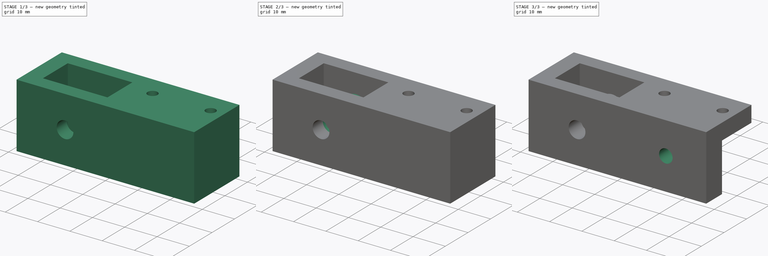
[diagram: build sequence overview — one tinted view per stage of 3, left to right]
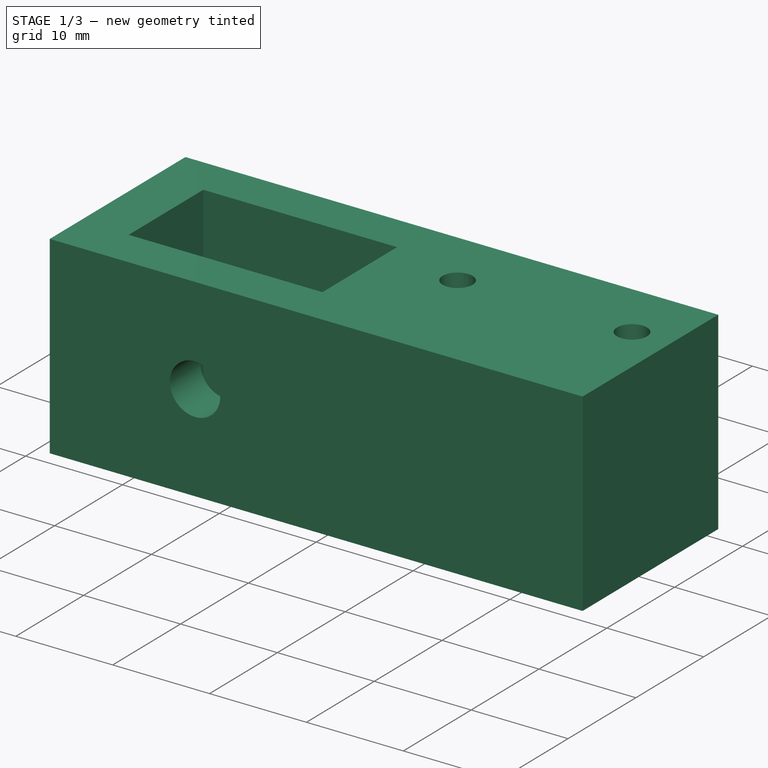
[diagram: stage 1 of 3 — iso view after this stage's code; geometry added in this stage tinted green]
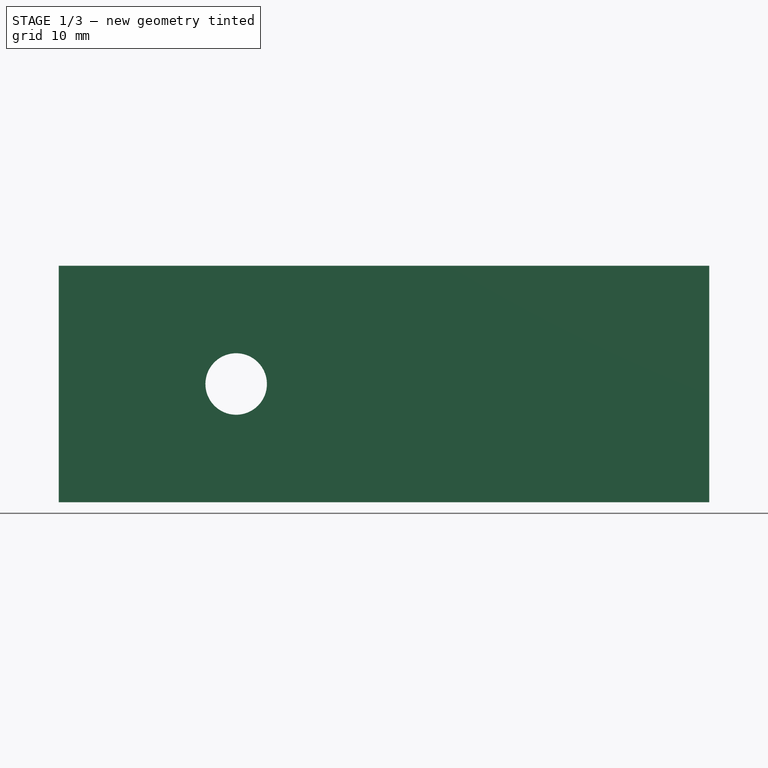
[diagram: stage 1 of 3 — front view after this stage's code; geometry added in this stage tinted green]
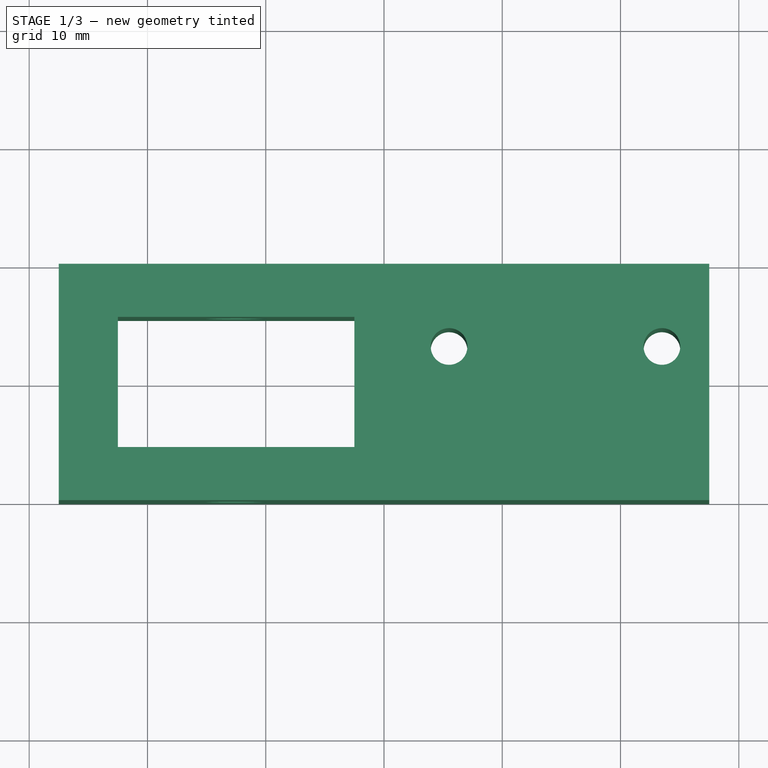
[diagram: stage 1 of 3 — top view after this stage's code; geometry added in this stage tinted green]
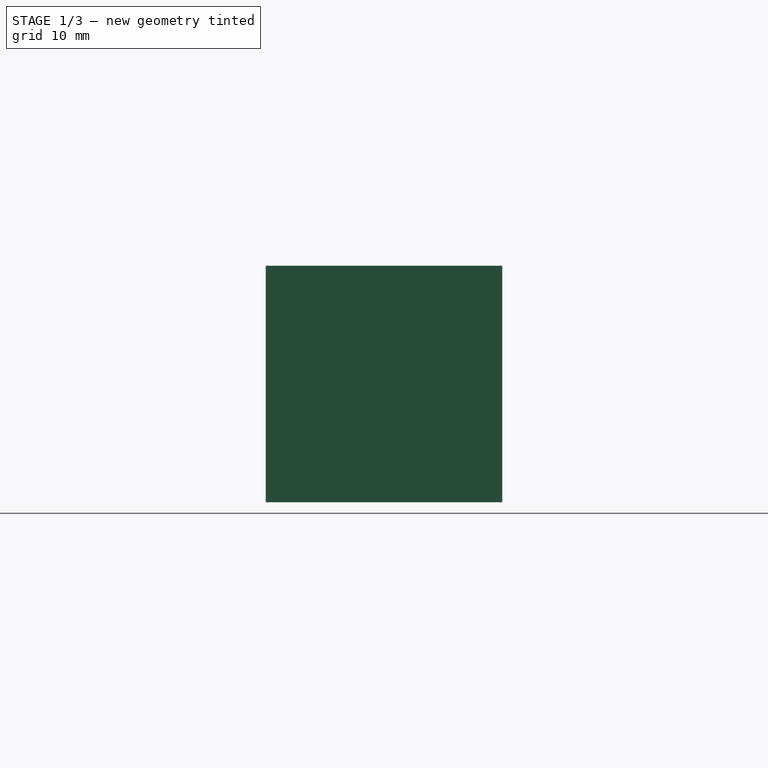
[diagram: stage 1 of 3 — right view after this stage's code; geometry added in this stage tinted green]
FCSTD DOCUMENT  (FreeCAD 0.16R6705 (Git))
Label: Z-belt-clamp-top-left
License: All rights reserved
LicenseURL: http://de.wikipedia.org/wiki/Alle_Rechte_vorbehalten
objects: Sketcher::SketchObject×8, PartDesign::Pocket×5, PartDesign::Pad×3
note: 24 computed .brp shape members not serialized (recipe doc carries the construction recipe); baked Part::Feature solids carry a one-line shape summary decoded from their .brp

FEATURE [Sketcher::SketchObject] Sketch
  sketch-geometry (10):
    g0: LineSegment StartX=-27.5 StartY=10 StartZ=0 EndX=-27.5 EndY=-10 EndZ=0
    g1: LineSegment StartX=-27.5 StartY=-10 StartZ=0 EndX=27.5 EndY=-10 EndZ=0
    g2: LineSegment StartX=27.5 StartY=-10 StartZ=0 EndX=27.5 EndY=10 EndZ=0
    g3: LineSegment StartX=27.5 StartY=10 StartZ=0 EndX=-27.5 EndY=10 EndZ=0
    g4: LineSegment StartX=-22.5 StartY=5.5 StartZ=0 EndX=-2.5 EndY=5.5 EndZ=0
    g5: LineSegment StartX=-2.5 StartY=5.5 StartZ=0 EndX=-2.5 EndY=-5.5 EndZ=0
    g6: LineSegment StartX=-2.5 StartY=-5.5 StartZ=0 EndX=-22.5 EndY=-5.5 EndZ=0
    g7: LineSegment StartX=-22.5 StartY=-5.5 StartZ=0 EndX=-22.5 EndY=5.5 EndZ=0
    g8: Circle CenterX=5.5 CenterY=3 CenterZ=0 NormalX=0 NormalY=0 NormalZ=1 Radius=1.55
    g9: Circle CenterX=23.5 CenterY=3 CenterZ=0 NormalX=0 NormalY=0 NormalZ=1 Radius=1.55
  constraints (30):
    c: Vertical(g0)
    c: Coincident(g0,g1)
    c: Horizontal(g1)
    c: Coincident(g1,g2)
    c: Vertical(g2)
    c: Coincident(g2,g3)
    c: Coincident(g3,g0)
    c: Horizontal(g3)
    c: Symmetric(g2,g0,g-2)
    c: Symmetric(g1,g2,g-1)
    c: DistanceX(g0,g1) = 55
    c: DistanceY(g2,g2) = 20
    c: Coincident(g4,g5)
    c: Coincident(g5,g6)
    c: Coincident(g6,g7)
    c: Coincident(g7,g4)
    c: Horizontal(g4)
    c: Horizontal(g6)
    c: Vertical(g5)
    c: Vertical(g7)
    c: DistanceX(g6,g6) = 20
    c: DistanceY(g7,g7) = 11
    c: Symmetric(g4,g6,g-1)
    c: DistanceX(g0,g6) = 5
    c: Equal(g8,g9)
    c: Radius(g8) = 1.55
    c: DistanceX(g8,g2) = 22
    c: DistanceX(g9,g2) = 4
    c: DistanceY(g9,g2) = 7
    c: DistanceY(g8,g2) = 7
FEATURE [PartDesign::Pad] Pad
  Length = 20
  Length2 = 100
  Midplane = true
  Sketch = -> Sketch
  Type = 0
FEATURE [Sketcher::SketchObject] Sketch001
  Placement = pos=(0,5.5,0) rot=(1,0,0;1.5708rad)
  Support = -> Pad [Face5]
  sketch-geometry (1):
    g0: Circle CenterX=-12.5 CenterY=0 CenterZ=0 NormalX=0 NormalY=0 NormalZ=1 Radius=2.6
  constraints (3):
    c: PointOnObject(g0,g-1)
    c: Radius(g0) = 2.6
    c: DistanceX(g0,g-1) = 12.5
FEATURE [PartDesign::Pocket] Pocket
  Length = 5
  Sketch = -> Sketch001
  Type = 0
FEATURE [Sketcher::SketchObject] Sketch002
  Placement = pos=(0,-5.5,0) rot=(0,0.707107,0.707107;3.14159rad)
  Support = -> Pocket [Face10]
  sketch-geometry (1):
    g0: Circle CenterX=12.5 CenterY=0 CenterZ=0 NormalX=0 NormalY=0 NormalZ=1 Radius=2.6
  constraints (3):
    c: PointOnObject(g0,g-1)
    c: Radius(g0) = 2.6
    c: DistanceX(g-1,g0) = 12.5
FEATURE [PartDesign::Pocket] Pocket001
  Length = 5
  Sketch = -> Sketch002
  Type = 0
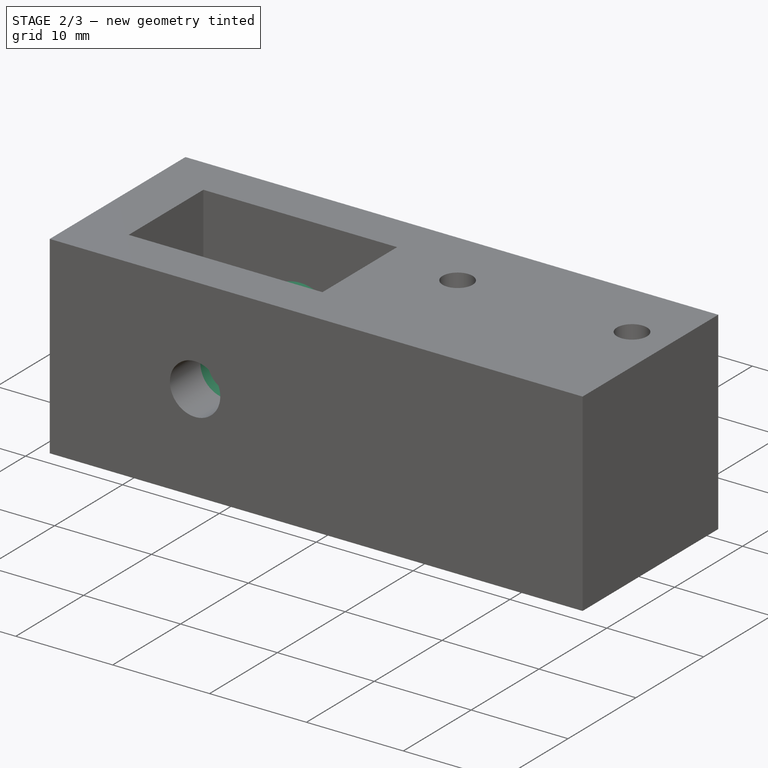
[diagram: stage 2 of 3 — iso view after this stage's code; geometry added in this stage tinted green]
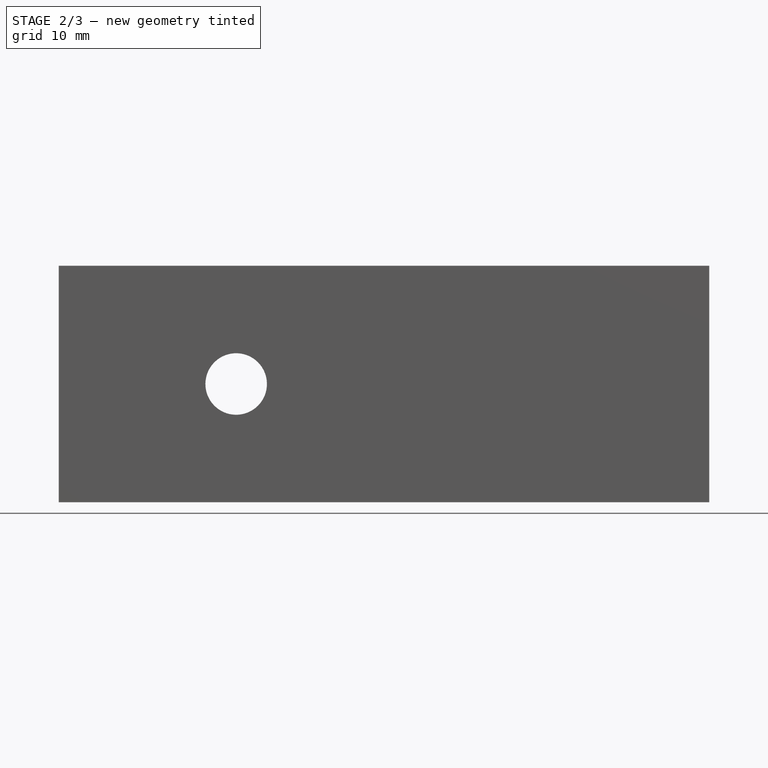
[diagram: stage 2 of 3 — front view after this stage's code; geometry added in this stage tinted green]
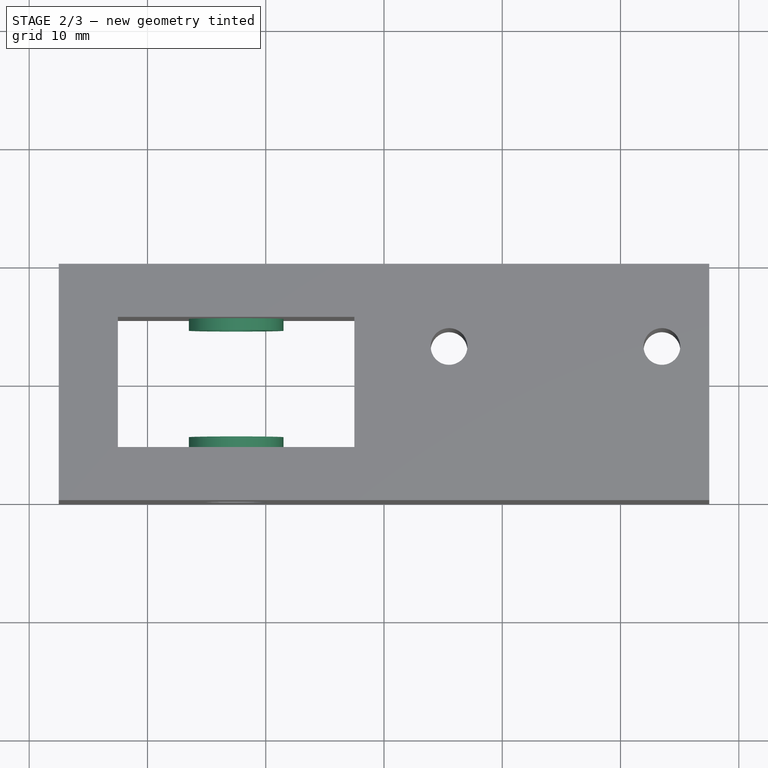
[diagram: stage 2 of 3 — top view after this stage's code; geometry added in this stage tinted green]
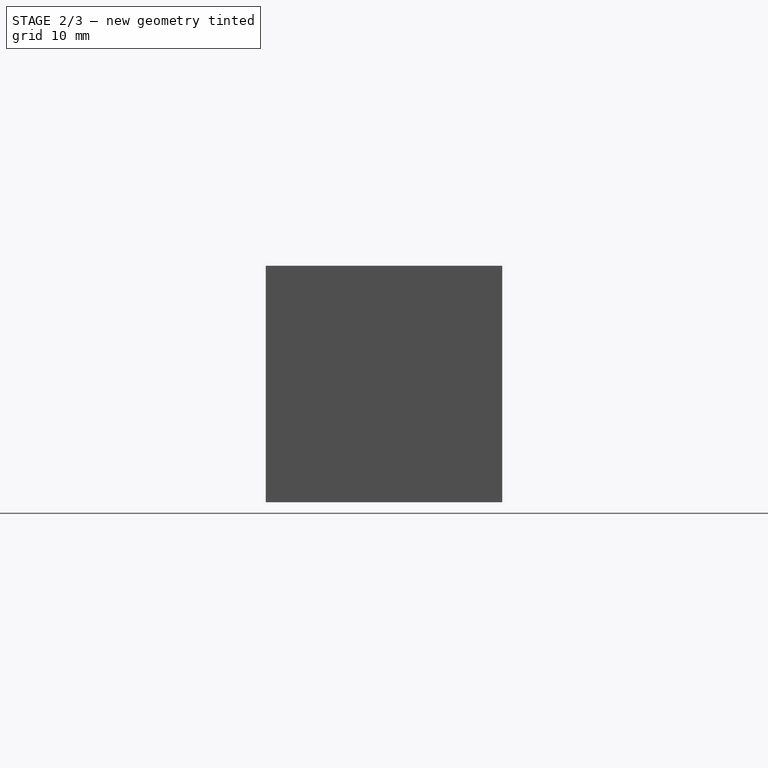
[diagram: stage 2 of 3 — right view after this stage's code; geometry added in this stage tinted green]
FEATURE [Sketcher::SketchObject] Sketch003
  ExternalGeometry = -> [Pocket001]
  Placement = pos=(0,-5.5,0) rot=(0,0.707107,0.707107;3.14159rad)
  Support = -> Pocket001 [Face11]
  sketch-geometry (2):
    g0: Circle CenterX=12.5 CenterY=0 CenterZ=0 NormalX=0 NormalY=0 NormalZ=1 Radius=4
    g1: Circle CenterX=12.5 CenterY=0 CenterZ=0 NormalX=0 NormalY=0 NormalZ=1 Radius=2.6
  constraints (4):
    c: Coincident(g0,g-3)
    c: Radius(g0) = 4
    c: Coincident(g1,g0)
    c: Equal(g1,g-3)
FEATURE [PartDesign::Pad] Pad001
  Length = 1
  Length2 = 100
  Sketch = -> Sketch003
  Type = 0
FEATURE [Sketcher::SketchObject] Sketch004
  ExternalGeometry = -> [Pad001]
  Placement = pos=(0,5.5,0) rot=(1,0,0;1.5708rad)
  Support = -> Pad001 [Face9]
  sketch-geometry (2):
    g0: Circle CenterX=-12.5 CenterY=0 CenterZ=0 NormalX=0 NormalY=0 NormalZ=1 Radius=2.6
    g1: Circle CenterX=-12.5 CenterY=0 CenterZ=0 NormalX=0 NormalY=0 NormalZ=1 Radius=4
  constraints (4):
    c: Coincident(g0,g-4)
    c: Coincident(g1,g0)
    c: Equal(g1,g-4)
    c: Equal(g0,g-3)
FEATURE [PartDesign::Pad] Pad002
  Length = 1
  Length2 = 100
  Sketch = -> Sketch004
  Type = 0
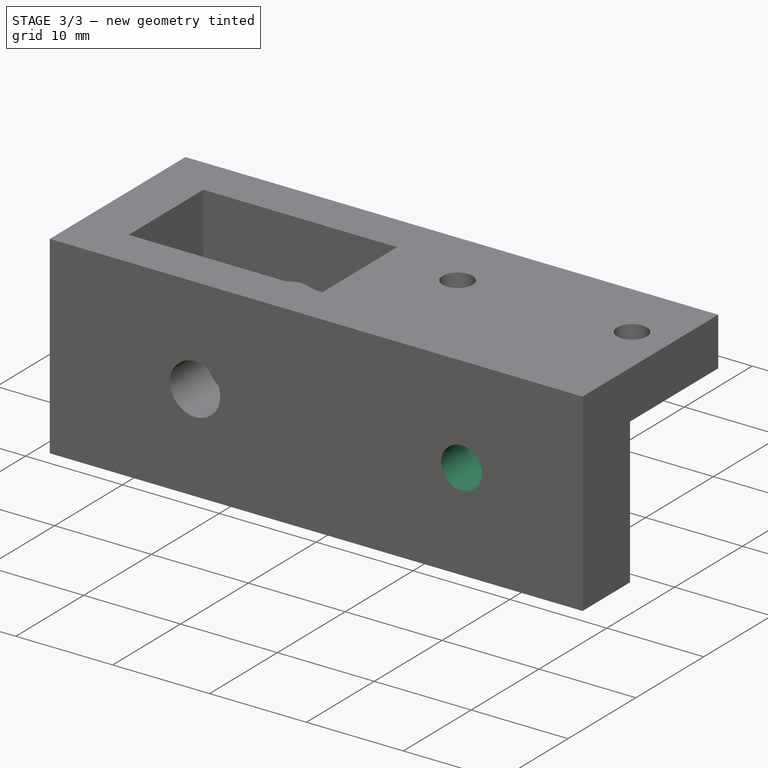
[diagram: stage 3 of 3 — iso view after this stage's code; geometry added in this stage tinted green]
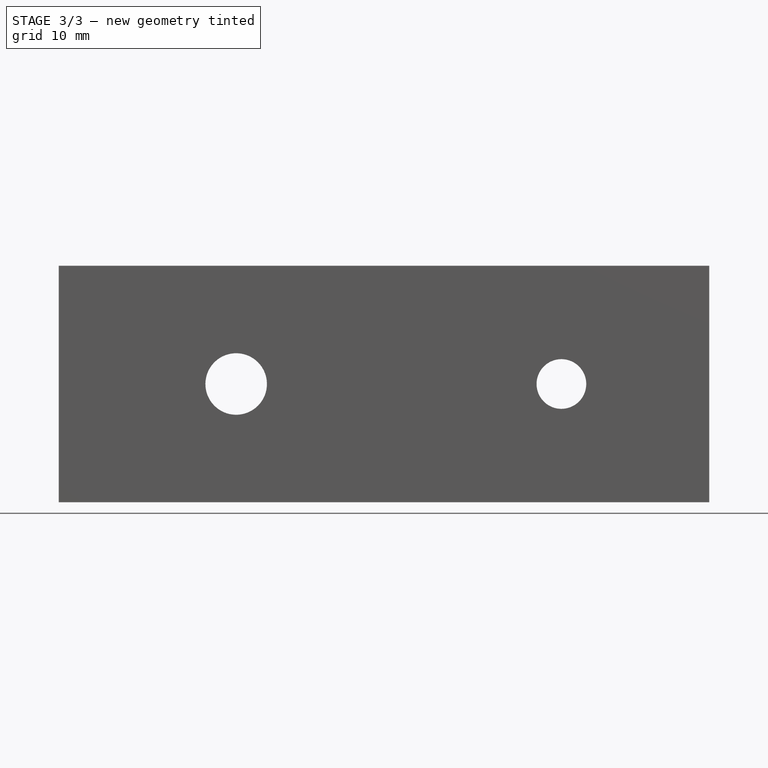
[diagram: stage 3 of 3 — front view after this stage's code; geometry added in this stage tinted green]
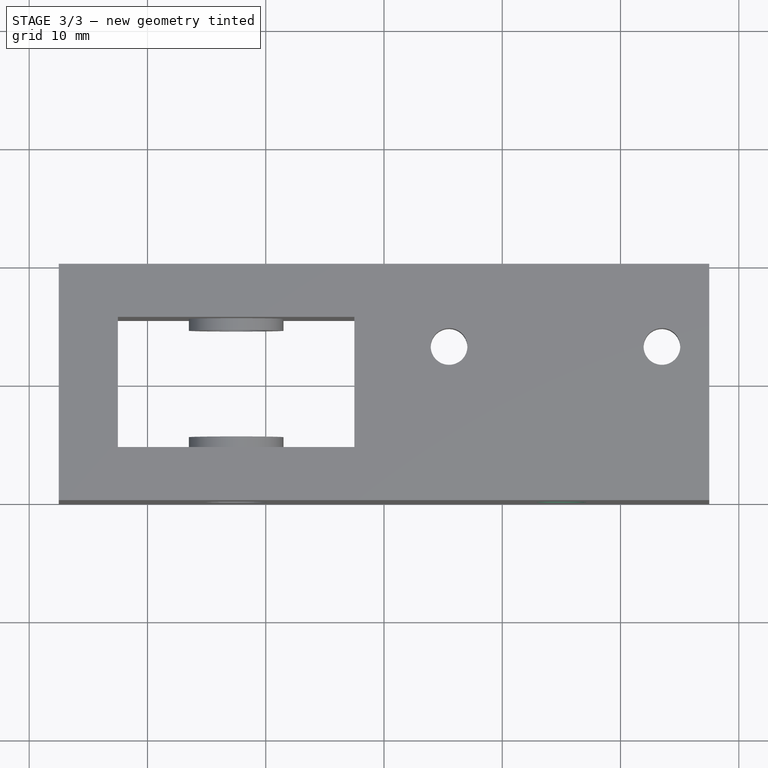
[diagram: stage 3 of 3 — top view after this stage's code; geometry added in this stage tinted green]
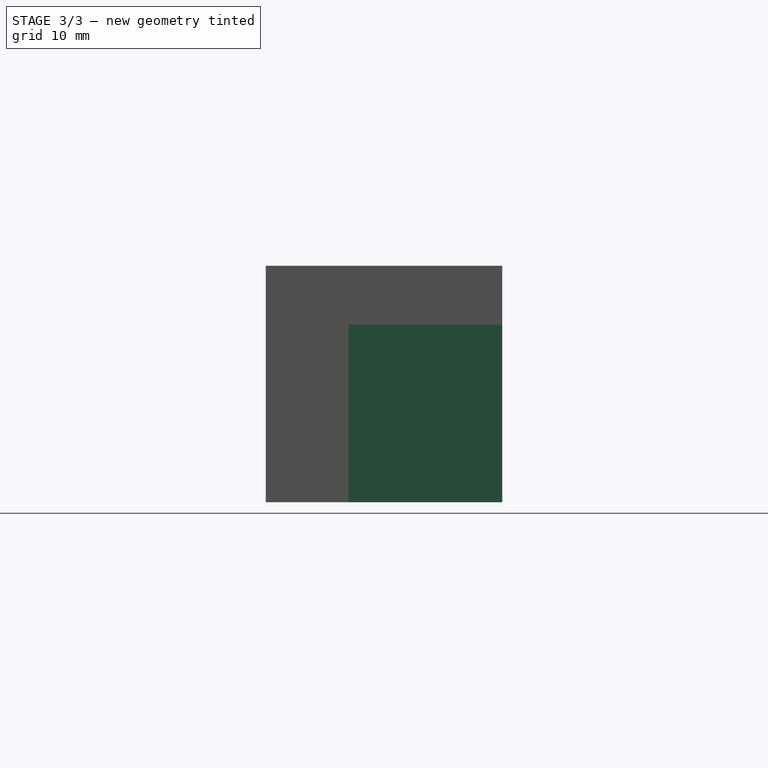
[diagram: stage 3 of 3 — right view after this stage's code; geometry added in this stage tinted green]
FEATURE [Sketcher::SketchObject] Sketch005
  ExternalGeometry = -> [Pad002]
  Placement = pos=(0,10,0) rot=(0,0.707107,0.707107;3.14159rad)
  Support = -> Pad002 [Face2]
  sketch-geometry (4):
    g0: LineSegment StartX=-27.5 StartY=-10 StartZ=0 EndX=-1.5 EndY=-10 EndZ=0
    g1: LineSegment StartX=-1.5 StartY=-10 StartZ=0 EndX=-1.5 EndY=5 EndZ=0
    g2: LineSegment StartX=-1.5 StartY=5 StartZ=0 EndX=-27.5 EndY=5 EndZ=0
    g3: LineSegment StartX=-27.5 StartY=5 StartZ=0 EndX=-27.5 EndY=-10 EndZ=0
  constraints (11):
    c: Coincident(g0,g1)
    c: Coincident(g1,g2)
    c: Coincident(g2,g3)
    c: Coincident(g3,g0)
    c: Horizontal(g0)
    c: Horizontal(g2)
    c: Vertical(g1)
    c: Vertical(g3)
    c: Coincident(g0,g-4)
    c: DistanceX(g2,g2) = 26
    c: DistanceY(g3,g3) = 15
FEATURE [PartDesign::Pocket] Pocket002
  Length = 13
  Sketch = -> Sketch005
  Type = 0
FEATURE [Sketcher::SketchObject] Sketch006
  Placement = pos=(0,-3,0) rot=(0,0.707107,0.707107;3.14159rad)
  Support = -> Pocket002 [Face11]
  sketch-geometry (1):
    g0: Circle CenterX=-15 CenterY=0 CenterZ=0 NormalX=0 NormalY=0 NormalZ=1 Radius=2.1
  constraints (3):
    c: PointOnObject(g0,g-1)
    c: Radius(g0) = 2.1
    c: DistanceX(g0,g-1) = 15
FEATURE [PartDesign::Pocket] Pocket003
  Length = 7
  Sketch = -> Sketch006
  Type = 0
FEATURE [Sketcher::SketchObject] Sketch007
  ExternalGeometry = -> [Pocket003]
  Placement = pos=(0,-3,0) rot=(0,0.707107,0.707107;3.14159rad)
  Support = -> Pocket003 [Face12]
  sketch-geometry (1):
    g0: Circle CenterX=-15 CenterY=0 CenterZ=0 NormalX=0 NormalY=0 NormalZ=1 Radius=3.55
  constraints (2):
    c: Coincident(g0,g-3)
    c: Radius(g0) = 3.55
FEATURE [PartDesign::Pocket] Pocket004
  Length = 3
  Sketch = -> Sketch007
  Type = 0
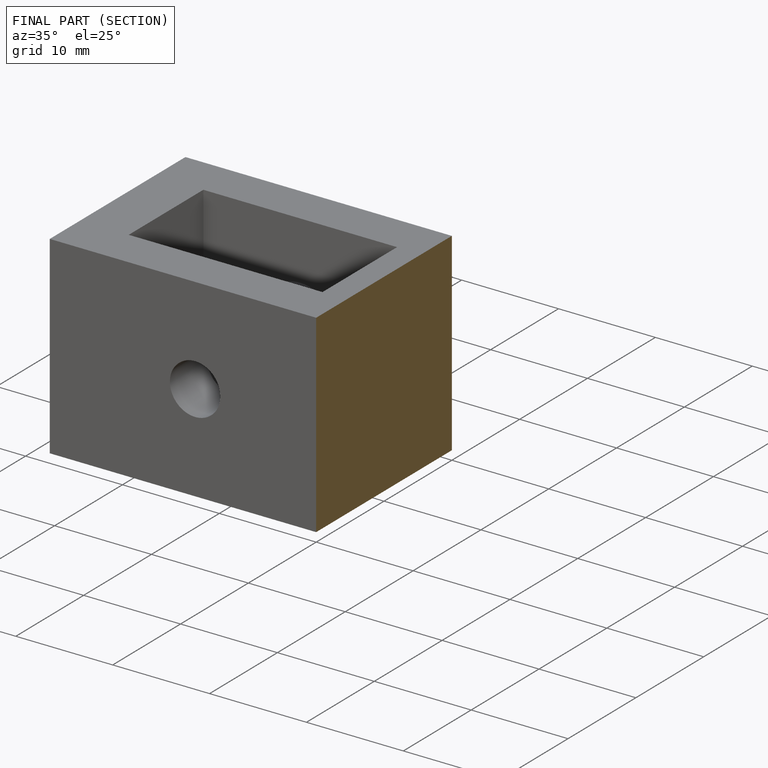
[diagram: finished part — half-section view (interior)]
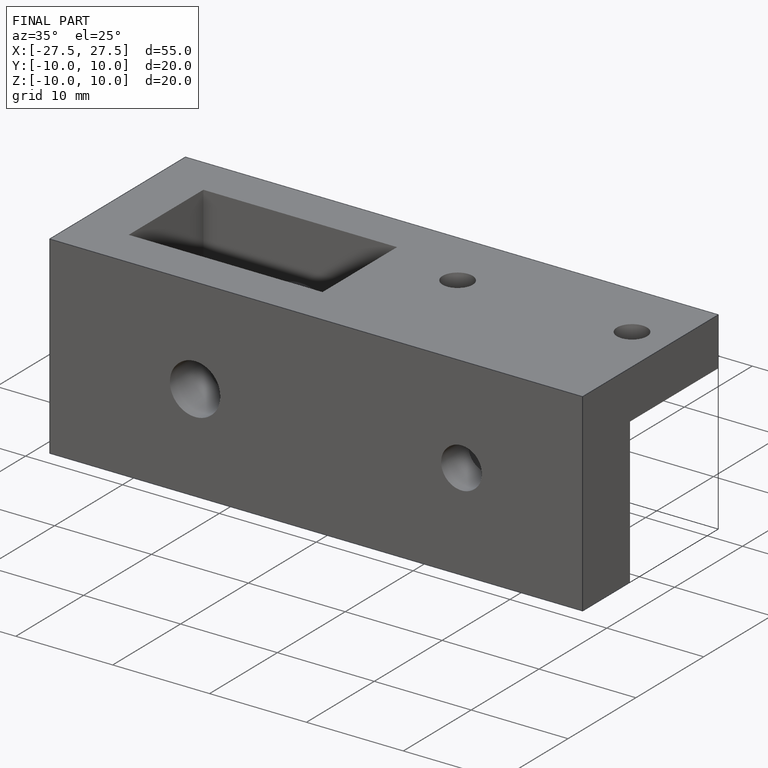
[diagram: finished part — iso view with bounding-box wireframe]
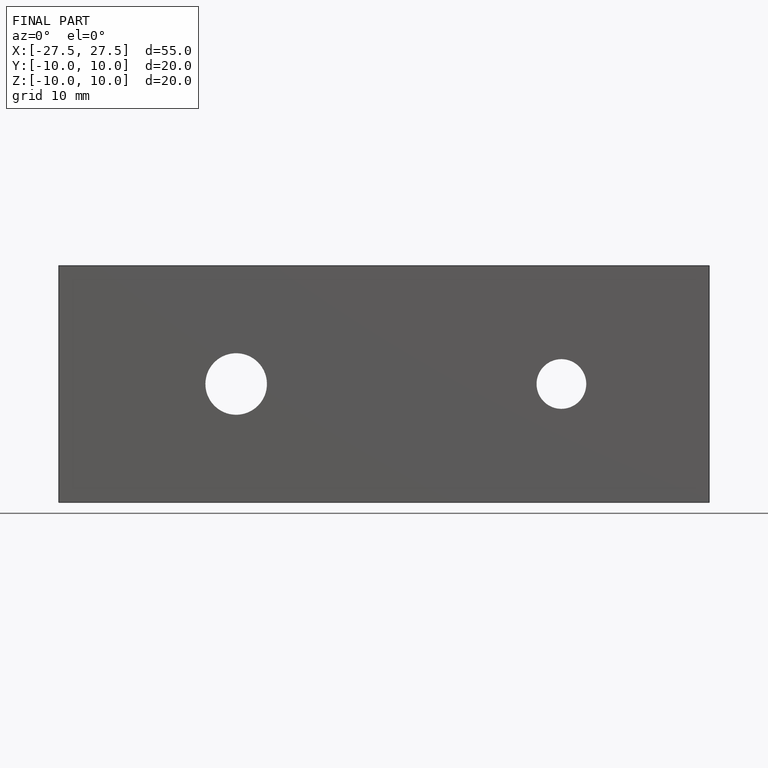
[diagram: finished part — front view with bounding-box wireframe]
